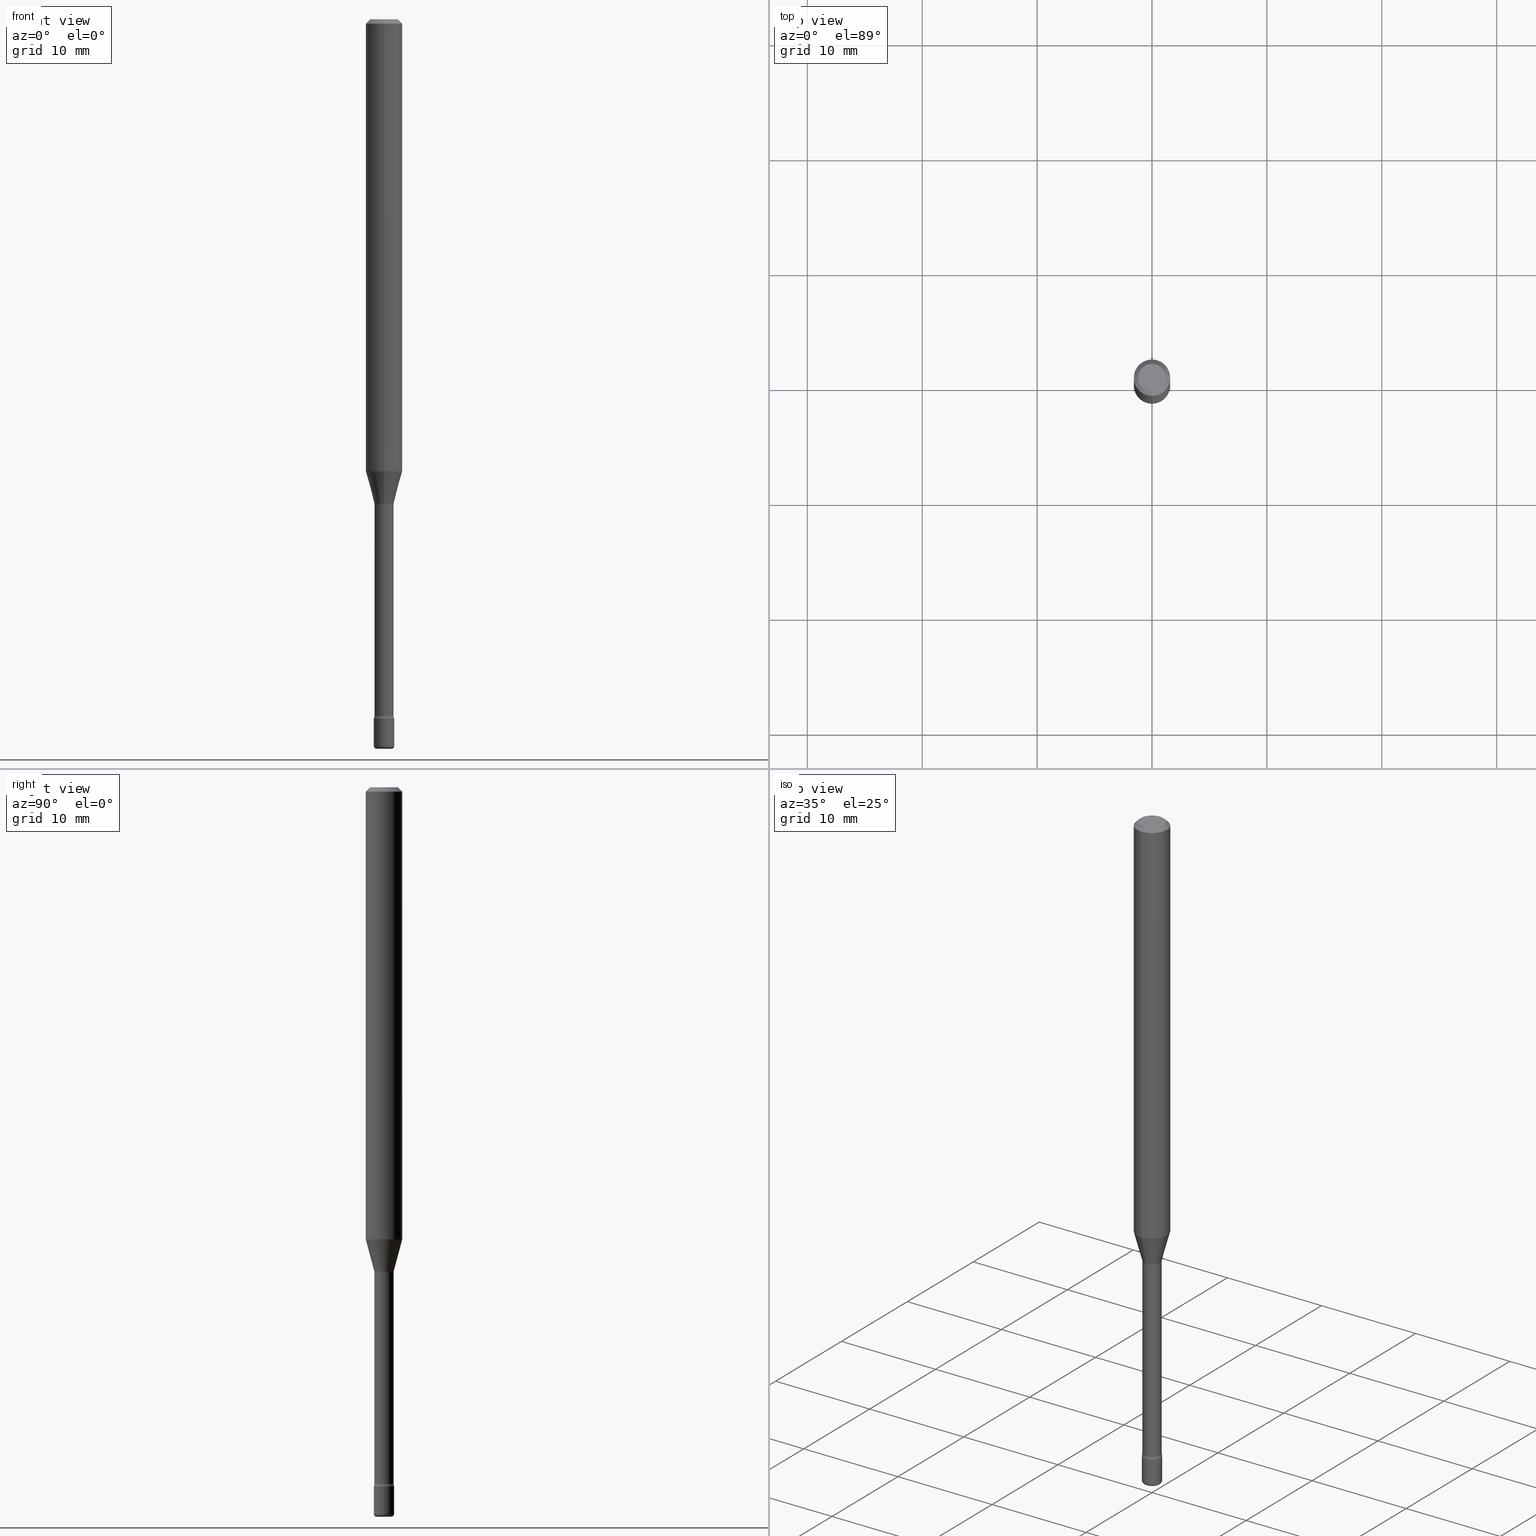
[diagram: canonical four-view strip — front | top / right | iso, engineering-drawing reading convention]
A machine part, canonical four-view strip (front | top / right | iso — engineering-drawing reading convention). The complete STEP part file that produces these views, byte-faithful:
ISO-10303-21;
HEADER;
FILE_DESCRIPTION (( 'STEP AP203' ),
    '1' );
FILE_NAME ('08835.STEP',
    '2024-03-06T20:04:43',
    ( '' ),
    ( '' ),
    'SwSTEP 2.0',
    'SolidWorks 2023',
    '' );
FILE_SCHEMA (( 'CONFIG_CONTROL_DESIGN' ));
ENDSEC;

DATA;
#1 = APPROVAL_DATE_TIME ( #51, #336 ) ;
#2 = CARTESIAN_POINT ( 'NONE',  ( -0.02500000000000000139, -8.516152849779407300E-15, -2.489999999999999769 ) ) ;
#3 = AXIS2_PLACEMENT_3D ( 'NONE', #350, #173, #533 ) ;
#4 = VERTEX_POINT ( 'NONE', #192 ) ;
#5 = PRODUCT_DEFINITION ( 'UNKNOWN', '', #532, #71 ) ;
#6 = CARTESIAN_POINT ( 'NONE',  ( 6.621140448549307300E-46, -9.460625362117724032E-32, -2.708570679933806043E-17 ) ) ;
#7 = VERTEX_POINT ( 'NONE', #151 ) ;
#8 = EDGE_CURVE ( 'NONE', #357, #167, #465, .T. ) ;
#9 = CARTESIAN_POINT ( 'NONE',  ( 0.03500000000000000333, -8.606501500248353382E-15, -2.395000000000000018 ) ) ;
#10 = EDGE_LOOP ( 'NONE', ( #16, #228, #308, #348 ) ) ;
#11 = CC_DESIGN_SECURITY_CLASSIFICATION ( #49, ( #532 ) ) ;
#12 = DIRECTION ( 'NONE',  ( -2.445417640947345847E-29, 3.491554610375806299E-15, 1.000000000000000000 ) ) ;
#13 = VECTOR ( 'NONE', #287, 39.37007874015748143 ) ;
#14 = EDGE_LOOP ( 'NONE', ( #101, #458, #124, #242 ) ) ;
#15 = DIRECTION ( 'NONE',  ( -6.982962677686265922E-15, -1.000000000000000000, 3.491554610375805905E-15 ) ) ;
#16 = ORIENTED_EDGE ( 'NONE', *, *, #202, .F. ) ;
#17 = DIRECTION ( 'NONE',  ( -2.445417640947345847E-29, 3.491554610375806299E-15, 1.000000000000000000 ) ) ;
#18 = ADVANCED_FACE ( 'NONE', ( #450 ), #327, .T. ) ;
#19 = CC_DESIGN_DATE_AND_TIME_ASSIGNMENT ( #159, #513, ( #49 ) ) ;
#20 = CARTESIAN_POINT ( 'NONE',  ( 4.054728654193116917E-29, -5.789320519044909412E-15, -1.658092501787273410 ) ) ;
#21 = ORIENTED_EDGE ( 'NONE', *, *, #425, .T. ) ;
#22 = AXIS2_PLACEMENT_3D ( 'NONE', #110, #544, #282 ) ;
#23 = CIRCLE ( 'NONE', #401, 0.01500000000000001853 ) ;
#24 = AXIS2_PLACEMENT_3D ( 'NONE', #451, #56, #501 ) ;
#25 = CC_DESIGN_PERSON_AND_ORGANIZATION_ASSIGNMENT ( #430, #384, ( #532 ) ) ;
#26 = CARTESIAN_POINT ( 'NONE',  ( 4.054728654193116917E-29, -5.789320519044909412E-15, -1.658092501787273410 ) ) ;
#27 = CARTESIAN_POINT ( 'NONE',  ( 6.113672015462842613E-29, -8.728703347107864943E-15, -2.500000000000000000 ) ) ;
#28 = CARTESIAN_POINT ( 'NONE',  ( -2.333085523452841648E-16, -0.03341111260566976410, -1.658092501787273410 ) ) ;
#29 = DIRECTION ( 'NONE',  ( -6.982962677686265133E-15, -1.000000000000000000, 3.491554610375806299E-15 ) ) ;
#30 = DIRECTION ( 'NONE',  ( 7.105427357601001859E-15, 1.000000000000000000, 0.000000000000000000 ) ) ;
#31 = AXIS2_PLACEMENT_3D ( 'NONE', #6, #305, #387 ) ;
#32 = CALENDAR_DATE ( 2024, 6, 3 ) ;
#33 = FACE_OUTER_BOUND ( 'NONE', #537, .T. ) ;
#34 = PERSON_AND_ORGANIZATION ( #374, #196 ) ;
#35 = DIRECTION ( 'NONE',  ( -6.982962677686266711E-15, -1.000000000000000000, 0.000000000000000000 ) ) ;
#36 = PRODUCT_DEFINITION_SHAPE ( 'NONE', 'NONE',  #5 ) ;
#37 = DIRECTION ( 'NONE',  ( -2.438088387897960049E-29, 3.491481338843145188E-15, 1.000000000000000000 ) ) ;
#38 = AXIS2_PLACEMENT_3D ( 'NONE', #407, #150, #15 ) ;
#39 = CIRCLE ( 'NONE', #93, 0.03290000000000001951 ) ;
#40 = DIRECTION ( 'NONE',  ( 0.000000000000000000, 0.000000000000000000, 1.000000000000000000 ) ) ;
#41 = ADVANCED_FACE ( 'NONE', ( #359 ), #409, .F. ) ;
#42 = DIRECTION ( 'NONE',  ( -2.445417640947345847E-29, 3.491554610375806299E-15, 1.000000000000000000 ) ) ;
#43 = DIRECTION ( 'NONE',  ( -6.982962677686265133E-15, -1.000000000000000000, 0.000000000000000000 ) ) ;
#44 = DIRECTION ( 'NONE',  ( -6.982962677686265922E-15, -1.000000000000000000, 3.483106191921935554E-15 ) ) ;
#45 = ORIENTED_EDGE ( 'NONE', *, *, #519, .T. ) ;
#46 = CC_DESIGN_PERSON_AND_ORGANIZATION_ASSIGNMENT ( #417, #331, ( #470 ) ) ;
#47 = CIRCLE ( 'NONE', #172, 0.03500000000000000333 ) ;
#48 = DIRECTION ( 'NONE',  ( 6.982962677686265922E-15, 1.000000000000000000, -3.491554610375806299E-15 ) ) ;
#49 = SECURITY_CLASSIFICATION ( '', '', #208 ) ;
#50 = VERTEX_POINT ( 'NONE', #500 ) ;
#51 = DATE_AND_TIME ( #376, #68 ) ;
#52 = CARTESIAN_POINT ( 'NONE',  ( 2.374002335562130443E-16, 0.03341111260565819002, -1.658092501787273410 ) ) ;
#53 = ORIENTED_EDGE ( 'NONE', *, *, #463, .F. ) ;
#54 = DIRECTION ( 'NONE',  ( -2.445417640947345847E-29, 3.491554610375806299E-15, 1.000000000000000000 ) ) ;
#55 = ORIENTED_EDGE ( 'NONE', *, *, #57, .T. ) ;
#56 = DIRECTION ( 'NONE',  ( -2.445417640947345847E-29, 3.491554610375806299E-15, 1.000000000000000000 ) ) ;
#57 = EDGE_CURVE ( 'NONE', #50, #284, #149, .T. ) ;
#58 = VECTOR ( 'NONE', #375, 39.37007874015748143 ) ;
#59 = VERTEX_POINT ( 'NONE', #239 ) ;
#60 = DIRECTION ( 'NONE',  ( -2.445417640947345847E-29, 3.491554610375806299E-15, 1.000000000000000000 ) ) ;
#61 = VERTEX_POINT ( 'NONE', #413 ) ;
#62 = CARTESIAN_POINT ( 'NONE',  ( 0.000000000000000000, 0.000000000000000000, 0.000000000000000000 ) ) ;
#63 = ORIENTED_EDGE ( 'NONE', *, *, #190, .F. ) ;
#64 = CARTESIAN_POINT ( 'NONE',  ( -0.02500000000000000139, -8.498083119685618084E-15, -2.500000000000000000 ) ) ;
#65 = VECTOR ( 'NONE', #17, 39.37007874015748143 ) ;
#66 = ORIENTED_EDGE ( 'NONE', *, *, #393, .T. ) ;
#67 = CIRCLE ( 'NONE', #299, 0.06250000000000000000 ) ;
#68 = LOCAL_TIME ( 15, 4, 43.00000000000000000, #467 ) ;
#69 = DIRECTION ( 'NONE',  ( -2.445417640947345847E-29, 3.491554610375806299E-15, 1.000000000000000000 ) ) ;
#70 = ORIENTED_EDGE ( 'NONE', *, *, #247, .T. ) ;
#71 = DESIGN_CONTEXT ( 'detailed design', #304, 'design' ) ;
#72 = ORIENTED_EDGE ( 'NONE', *, *, #283, .T. ) ;
#73 = DIRECTION ( 'NONE',  ( -6.982962677686265922E-15, -1.000000000000000000, 3.483106191921935554E-15 ) ) ;
#74 = APPROVAL_DATE_TIME ( #342, #216 ) ;
#75 = CYLINDRICAL_SURFACE ( 'NONE', #438, 0.03500000000000000333 ) ;
#76 = AXIS2_PLACEMENT_3D ( 'NONE', #443, #94, #434 ) ;
#77 = CIRCLE ( 'NONE', #309, 0.01500000000000001853 ) ;
#78 = DIRECTION ( 'NONE',  ( 1.000000000000000000, -6.982962677686276966E-15, 0.000000000000000000 ) ) ;
#79 = ORIENTED_EDGE ( 'NONE', *, *, #406, .T. ) ;
#80 = APPROVAL_DATE_TIME ( #252, #223 ) ;
#81 = DIRECTION ( 'NONE',  ( -6.982962677686265922E-15, -1.000000000000000000, 3.491554610375806299E-15 ) ) ;
#82 = APPROVAL_ROLE ( '' ) ;
#83 = DIRECTION ( 'NONE',  ( -2.445417640947345847E-29, 3.491554610375806299E-15, 1.000000000000000000 ) ) ;
#84 = EDGE_CURVE ( 'NONE', #61, #528, #534, .T. ) ;
#85 = CIRCLE ( 'NONE', #318, 0.03500000000000000333 ) ;
#86 = DIRECTION ( 'NONE',  ( -6.982962677686266711E-15, -1.000000000000000000, 0.000000000000000000 ) ) ;
#87 = FACE_OUTER_BOUND ( 'NONE', #234, .T. ) ;
#88 = ORIENTED_EDGE ( 'NONE', *, *, #116, .F. ) ;
#89 = DIRECTION ( 'NONE',  ( -6.982962677686265922E-15, -1.000000000000000000, 4.370956789862821150E-15 ) ) ;
#90 = EDGE_CURVE ( 'NONE', #50, #59, #526, .T. ) ;
#91 = ORIENTED_EDGE ( 'NONE', *, *, #418, .F. ) ;
#92 = AXIS2_PLACEMENT_3D ( 'NONE', #542, #100, #152 ) ;
#93 = AXIS2_PLACEMENT_3D ( 'NONE', #502, #368, #555 ) ;
#94 = DIRECTION ( 'NONE',  ( -2.445417640947345847E-29, 3.491554610375806299E-15, 1.000000000000000000 ) ) ;
#95 = VECTOR ( 'NONE', #277, 39.37007874015748143 ) ;
#96 = ORIENTED_EDGE ( 'NONE', *, *, #499, .F. ) ;
#97 = EDGE_CURVE ( 'NONE', #357, #268, #39, .T. ) ;
#98 = CARTESIAN_POINT ( 'NONE',  ( 2.337685600651315248E-16, 0.03289999999999419777, -1.661974787463811332 ) ) ;
#99 = EDGE_LOOP ( 'NONE', ( #88, #551 ) ) ;
#100 = DIRECTION ( 'NONE',  ( 2.438088387897960049E-29, -3.491481338843145188E-15, -1.000000000000000000 ) ) ;
#101 = ORIENTED_EDGE ( 'NONE', *, *, #488, .T. ) ;
#102 = CARTESIAN_POINT ( 'NONE',  ( 4.054728654193116917E-29, -5.789320519044909412E-15, -1.658092501787273410 ) ) ;
#103 = AXIS2_PLACEMENT_3D ( 'NONE', #256, #300, #138 ) ;
#104 = ORIENTED_EDGE ( 'NONE', *, *, #385, .F. ) ;
#105 = DIRECTION ( 'NONE',  ( -6.982962677686266711E-15, -1.000000000000000000, 0.000000000000000000 ) ) ;
#106 = DIRECTION ( 'NONE',  ( -2.445468806185136877E-29, 3.491481338843145188E-15, 1.000000000000000000 ) ) ;
#107 = CYLINDRICAL_SURFACE ( 'NONE', #38, 0.06250000000000000000 ) ;
#108 = FACE_OUTER_BOUND ( 'NONE', #99, .T. ) ;
#109 = DIRECTION ( 'NONE',  ( 1.000000000000000000, -6.982962677686265922E-15, 4.876176775795936353E-29 ) ) ;
#110 = CARTESIAN_POINT ( 'NONE',  ( 6.089217327400989947E-29, -8.693788533719431716E-15, -2.489999999999999769 ) ) ;
#111 = AXIS2_PLACEMENT_3D ( 'NONE', #249, #54, #44 ) ;
#112 = ORIENTED_EDGE ( 'NONE', *, *, #570, .T. ) ;
#113 = ORIENTED_EDGE ( 'NONE', *, *, #554, .F. ) ;
#114 = CC_DESIGN_PERSON_AND_ORGANIZATION_ASSIGNMENT ( #522, #295, ( #5 ) ) ;
#115 = CARTESIAN_POINT ( 'NONE',  ( -4.287811248607203282E-16, -0.06250000000000005551, -0.01499999999999981036 ) ) ;
#116 = EDGE_CURVE ( 'NONE', #4, #167, #85, .T. ) ;
#117 =( NAMED_UNIT ( * ) SI_UNIT ( $, .STERADIAN. ) SOLID_ANGLE_UNIT ( ) );
#118 = ADVANCED_FACE ( 'NONE', ( #108 ), #290, .F. ) ;
#119 = CARTESIAN_POINT ( 'NONE',  ( 3.407447217031568368E-16, 0.03341111260565819002, -1.658092501787273410 ) ) ;
#120 = CIRCLE ( 'NONE', #111, 0.06250000000000000000 ) ;
#121 = ORIENTED_EDGE ( 'NONE', *, *, #127, .T. ) ;
#122 = DIRECTION ( 'NONE',  ( -2.445468806185136597E-29, 3.491481338843145583E-15, 1.000000000000000000 ) ) ;
#123 = EDGE_CURVE ( 'NONE', #268, #4, #478, .T. ) ;
#124 = ORIENTED_EDGE ( 'NONE', *, *, #445, .F. ) ;
#125 = MECHANICAL_CONTEXT ( 'NONE', #275, 'mechanical' ) ;
#126 = DIRECTION ( 'NONE',  ( -6.982962677686265133E-15, -1.000000000000000000, 3.491554610375807088E-15 ) ) ;
#127 = EDGE_CURVE ( 'NONE', #268, #357, #353, .T. ) ;
#128 = CARTESIAN_POINT ( 'NONE',  ( 4.064222464073720144E-29, -5.802875731497621778E-15, -1.661974787463811332 ) ) ;
#129 = CIRCLE ( 'NONE', #31, 0.04750000000000000749 ) ;
#130 = DIRECTION ( 'NONE',  ( -1.000000000000000000, 7.105427357600962416E-15, 0.000000000000000000 ) ) ;
#131 = ADVANCED_FACE ( 'NONE', ( #33 ), #75, .T. ) ;
#132 = DIRECTION ( 'NONE',  ( 1.000000000000000000, -6.982962677686276966E-15, 0.000000000000000000 ) ) ;
#133 = ORIENTED_EDGE ( 'NONE', *, *, #57, .F. ) ;
#134 = CARTESIAN_POINT ( 'NONE',  ( -2.297394720958374770E-16, -0.03290000000000579961, -1.661974787463811332 ) ) ;
#135 = EDGE_LOOP ( 'NONE', ( #503, #493, #461, #367 ) ) ;
#136 = CONICAL_SURFACE ( 'NONE', #183, 0.03341111260566397706, 0.2617993877991495744 ) ;
#137 = CIRCLE ( 'NONE', #432, 0.03289999999999999869 ) ;
#138 = DIRECTION ( 'NONE',  ( -6.982962677686265133E-15, -1.000000000000000000, 3.491554610375805905E-15 ) ) ;
#139 = CIRCLE ( 'NONE', #164, 0.03341111260566397706 ) ;
#140 = ORIENTED_EDGE ( 'NONE', *, *, #141, .T. ) ;
#141 = EDGE_CURVE ( 'NONE', #232, #314, #23, .T. ) ;
#142 = DIRECTION ( 'NONE',  ( 7.105427357601001859E-15, 1.000000000000000000, -3.491481338843145583E-15 ) ) ;
#143 = EDGE_LOOP ( 'NONE', ( #230, #352, #63, #408 ) ) ;
#144 = EDGE_CURVE ( 'NONE', #314, #303, #255, .T. ) ;
#145 = DIRECTION ( 'NONE',  ( 1.000000000000000000, -7.105427357601001070E-15, 4.926316405859561380E-29 ) ) ;
#146 = CYLINDRICAL_SURFACE ( 'NONE', #543, 0.03290000000000001257 ) ;
#147 = AXIS2_PLACEMENT_3D ( 'NONE', #389, #354, #171 ) ;
#148 = CIRCLE ( 'NONE', #24, 0.03500000000000000333 ) ;
#149 = LINE ( 'NONE', #203, #212 ) ;
#150 = DIRECTION ( 'NONE',  ( -2.445417640947345847E-29, 3.491554610375806299E-15, 1.000000000000000000 ) ) ;
#151 = CARTESIAN_POINT ( 'NONE',  ( -4.364351673553540013E-16, -0.06250000000000544009, -1.549531296095961297 ) ) ;
#152 = DIRECTION ( 'NONE',  ( -1.000000000000000000, 6.982962677686265922E-15, -4.876176775795935793E-29 ) ) ;
#153 = DIRECTION ( 'NONE',  ( -2.445468806185136597E-29, 3.491481338843145583E-15, 1.000000000000000000 ) ) ;
#154 = APPLICATION_PROTOCOL_DEFINITION ( 'international standard', 'config_control_design', 1994, #275 ) ;
#155 = CARTESIAN_POINT ( 'NONE',  ( 5.856775250068893887E-29, -8.362273291850056610E-15, -2.395000000000000018 ) ) ;
#156 = LENGTH_MEASURE_WITH_UNIT ( LENGTH_MEASURE( 0.02539999999999999897 ), #460 );
#157 = CARTESIAN_POINT ( 'NONE',  ( 0.000000000000000000, 0.000000000000000000, 0.000000000000000000 ) ) ;
#158 = EDGE_CURVE ( 'NONE', #531, #7, #214, .T. ) ;
#159 = DATE_AND_TIME ( #32, #288 ) ;
#160 = CARTESIAN_POINT ( 'NONE',  ( 0.02500000000000000139, -8.868362600661588384E-15, -2.489999999999999769 ) ) ;
#161 = CC_DESIGN_PERSON_AND_ORGANIZATION_ASSIGNMENT ( #560, #328, ( #532 ) ) ;
#162 =( NAMED_UNIT ( * ) PLANE_ANGLE_UNIT ( ) SI_UNIT ( $, .RADIAN. ) );
#163 = CARTESIAN_POINT ( 'NONE',  ( 5.856897790813402508E-29, -8.362097806529333416E-15, -2.395000000000000018 ) ) ;
#164 = AXIS2_PLACEMENT_3D ( 'NONE', #102, #274, #313 ) ;
#165 = CIRCLE ( 'NONE', #497, 0.01000000000000008521 ) ;
#166 = VECTOR ( 'NONE', #236, 39.37007874015748143 ) ;
#167 = VERTEX_POINT ( 'NONE', #211 ) ;
#168 = CYLINDRICAL_SURFACE ( 'NONE', #383, 0.06250000000000000000 ) ;
#169 = CARTESIAN_POINT ( 'NONE',  ( 4.440892098501002843E-16, 0.06249999999999455991, -1.549531296095961963 ) ) ;
#170 = DIMENSIONAL_EXPONENTS ( 1.000000000000000000, 0.000000000000000000, 0.000000000000000000, 0.000000000000000000, 0.000000000000000000, 0.000000000000000000, 0.000000000000000000 ) ;
#171 = DIRECTION ( 'NONE',  ( 1.000000000000000000, -6.982962677686276966E-15, 0.000000000000000000 ) ) ;
#172 = AXIS2_PLACEMENT_3D ( 'NONE', #441, #257, #132 ) ;
#173 = DIRECTION ( 'NONE',  ( 2.445417640947345847E-29, -3.491554610375806299E-15, -1.000000000000000000 ) ) ;
#174 = MANIFOLD_SOLID_BREP ( 'Body-Move/Copy2[1]', #298 ) ;
#175 = ORIENTED_EDGE ( 'NONE', *, *, #144, .T. ) ;
#176 = EDGE_CURVE ( 'NONE', #7, #541, #253, .T. ) ;
#177 = MANIFOLD_SOLID_BREP ( 'Body-Move/Copy2[2]', #360 ) ;
#178 = CARTESIAN_POINT ( 'NONE',  ( -0.03500000000000000333, -8.279253212608347280E-15, -2.395000000000000018 ) ) ;
#179 = ORIENTED_EDGE ( 'NONE', *, *, #406, .F. ) ;
#180 = DIRECTION ( 'NONE',  ( 2.445417640947345566E-29, -3.491554610375806299E-15, -1.000000000000000000 ) ) ;
#181 = ADVANCED_FACE ( 'NONE', ( #464 ), #168, .T. ) ;
#182 = ORIENTED_EDGE ( 'NONE', *, *, #385, .T. ) ;
#183 = AXIS2_PLACEMENT_3D ( 'NONE', #20, #365, #105 ) ;
#184 = AXIS2_PLACEMENT_3D ( 'NONE', #325, #549, #505 ) ;
#185 = CARTESIAN_POINT ( 'NONE',  ( -3.773273898774340269E-16, -0.04750000000000000749, 1.387631371935127597E-16 ) ) ;
#186 = ADVANCED_FACE ( 'NONE', ( #382 ), #244, .T. ) ;
#187 = ORIENTED_EDGE ( 'NONE', *, *, #428, .F. ) ;
#188 = CARTESIAN_POINT ( 'NONE',  ( 4.440892098501006787E-16, 0.06249999999999995143, -0.01500000000000024578 ) ) ;
#189 = CARTESIAN_POINT ( 'NONE',  ( 3.403499704291464501E-16, 0.04789999999999168534, -2.387345589506696619 ) ) ;
#190 = EDGE_CURVE ( 'NONE', #541, #539, #67, .T. ) ;
#191 = DIRECTION ( 'NONE',  ( -6.982962677686265133E-15, -1.000000000000000000, 3.491554610375807088E-15 ) ) ;
#192 = CARTESIAN_POINT ( 'NONE',  ( -2.444036937189608014E-16, -0.03500000000000835776, -2.395000000000000018 ) ) ;
#193 = AXIS2_PLACEMENT_3D ( 'NONE', #26, #60, #454 ) ;
#194 = LINE ( 'NONE', #550, #379 ) ;
#195 = TOROIDAL_SURFACE ( 'NONE', #567, 0.02500000000000000139, 0.01000000000000008521 ) ;
#196 = ORGANIZATION ( 'UNSPECIFIED', 'UNSPECIFIED', '' ) ;
#197 = UNCERTAINTY_MEASURE_WITH_UNIT (LENGTH_MEASURE( 1.000000000000000082E-05 ), #380, 'distance_accuracy_value', 'NONE');
#198 = DIRECTION ( 'NONE',  ( -2.445417640947345847E-29, 3.491554610375806299E-15, 1.000000000000000000 ) ) ;
#199 = ORIENTED_EDGE ( 'NONE', *, *, #123, .T. ) ;
#200 = ORIENTED_EDGE ( 'NONE', *, *, #123, .F. ) ;
#201 = FACE_OUTER_BOUND ( 'NONE', #285, .T. ) ;
#202 = EDGE_CURVE ( 'NONE', #436, #541, #377, .T. ) ;
#203 = CARTESIAN_POINT ( 'NONE',  ( 0.03500000000000000333, -2.444036937190193250E-16, 1.706661871528577808E-30 ) ) ;
#204 = CARTESIAN_POINT ( 'NONE',  ( 0.000000000000000000, 0.000000000000000000, 0.000000000000000000 ) ) ;
#205 = DIRECTION ( 'NONE',  ( -2.445417640947345847E-29, 3.491554610375806299E-15, 1.000000000000000000 ) ) ;
#206 = AXIS2_PLACEMENT_3D ( 'NONE', #311, #180, #48 ) ;
#207 = LINE ( 'NONE', #344, #58 ) ;
#208 = SECURITY_CLASSIFICATION_LEVEL ( 'unclassified' ) ;
#209 = DIRECTION ( 'NONE',  ( -2.445417640947345847E-29, 3.491554610375806299E-15, 1.000000000000000000 ) ) ;
#210 = ADVANCED_FACE ( 'NONE', ( #564 ), #427, .T. ) ;
#211 = CARTESIAN_POINT ( 'NONE',  ( 2.486899575160935630E-16, 0.03499999999999163502, -2.395000000000000018 ) ) ;
#212 = VECTOR ( 'NONE', #106, 39.37007874015748143 ) ;
#213 = APPROVAL_STATUS ( 'not_yet_approved' ) ;
#214 = LINE ( 'NONE', #512, #261 ) ;
#215 = FACE_OUTER_BOUND ( 'NONE', #455, .T. ) ;
#216 = APPROVAL ( #472, 'UNSPECIFIED' ) ;
#217 = CARTESIAN_POINT ( 'NONE',  ( 3.840629472727447874E-16, 0.04750000000000000749, -1.929345507921888683E-16 ) ) ;
#218 = VERTEX_POINT ( 'NONE', #169 ) ;
#219 = AXIS2_PLACEMENT_3D ( 'NONE', #294, #424, #35 ) ;
#220 = TOROIDAL_SURFACE ( 'NONE', #307, 0.04790000000000001895, 0.01500000000000000291 ) ;
#221 = CARTESIAN_POINT ( 'NONE',  ( -2.297394720958198756E-16, -0.03290000000000835312, -2.387345589506695731 ) ) ;
#222 = ORIENTED_EDGE ( 'NONE', *, *, #226, .T. ) ;
#223 = APPROVAL ( #213, 'UNSPECIFIED' ) ;
#224 = CARTESIAN_POINT ( 'NONE',  ( 3.668126461421025373E-31, -5.237331915563719680E-17, -0.01500000000000002720 ) ) ;
#225 = EDGE_LOOP ( 'NONE', ( #72, #452 ) ) ;
#226 = EDGE_CURVE ( 'NONE', #59, #391, #207, .T. ) ;
#227 = CARTESIAN_POINT ( 'NONE',  ( 5.838179168722291637E-29, -8.335372575132118350E-15, -2.387345589506696175 ) ) ;
#228 = ORIENTED_EDGE ( 'NONE', *, *, #283, .F. ) ;
#229 = DIRECTION ( 'NONE',  ( -2.445468806185136597E-29, 3.491481338843145583E-15, 1.000000000000000000 ) ) ;
#230 = ORIENTED_EDGE ( 'NONE', *, *, #445, .T. ) ;
#231 = DIRECTION ( 'NONE',  ( -6.982962677686265133E-15, -1.000000000000000000, 3.491554610375806299E-15 ) ) ;
#232 = VERTEX_POINT ( 'NONE', #119 ) ;
#233 = FACE_OUTER_BOUND ( 'NONE', #397, .T. ) ;
#234 = EDGE_LOOP ( 'NONE', ( #400, #21, #457, #372 ) ) ;
#235 = LOCAL_TIME ( 15, 4, 43.00000000000000000, #373 ) ;
#236 = DIRECTION ( 'NONE',  ( 4.937700262164546464E-15, 0.7071067811865449082, -0.7071067811865501263 ) ) ;
#237 = CIRCLE ( 'NONE', #103, 0.04750000000000000749 ) ;
#238 = LOCAL_TIME ( 15, 4, 43.00000000000000000, #286 ) ;
#239 = CARTESIAN_POINT ( 'NONE',  ( -0.03500000000000004496, -8.445098576203397219E-15, -2.489999999999999769 ) ) ;
#240 = EDGE_CURVE ( 'NONE', #531, #303, #77, .T. ) ;
#241 = EDGE_LOOP ( 'NONE', ( #113, #182, #395, #444 ) ) ;
#242 = ORIENTED_EDGE ( 'NONE', *, *, #158, .F. ) ;
#243 = EDGE_CURVE ( 'NONE', #61, #50, #281, .T. ) ;
#244 = CYLINDRICAL_SURFACE ( 'NONE', #557, 0.03290000000000001257 ) ;
#245 = COORDINATED_UNIVERSAL_TIME_OFFSET ( 5, 0, .BEHIND. ) ;
#246 = DIRECTION ( 'NONE',  ( 1.000000000000000000, -6.982962677686265922E-15, 4.876176775795935793E-29 ) ) ;
#247 = EDGE_CURVE ( 'NONE', #391, #284, #370, .T. ) ;
#248 = CONICAL_SURFACE ( 'NONE', #3, 0.06250000000000000000, 0.7853981633974480570 ) ;
#249 = CARTESIAN_POINT ( 'NONE',  ( 3.668126461421025373E-31, -5.237331915563719680E-17, -0.01500000000000002720 ) ) ;
#250 = APPROVAL_STATUS ( 'not_yet_approved' ) ;
#251 = DIRECTION ( 'NONE',  ( -6.982962677686265922E-15, -1.000000000000000000, 3.491554610375805905E-15 ) ) ;
#252 = DATE_AND_TIME ( #563, #310 ) ;
#253 = LINE ( 'NONE', #523, #486 ) ;
#254 = CC_DESIGN_APPROVAL ( #336, ( #49 ) ) ;
#255 = CIRCLE ( 'NONE', #507, 0.03289999999999999869 ) ;
#256 = CARTESIAN_POINT ( 'NONE',  ( 6.621140448549307300E-46, -9.460625362117724032E-32, -2.708570679933806043E-17 ) ) ;
#257 = DIRECTION ( 'NONE',  ( -2.445468806185136597E-29, 3.491481338843145583E-15, 1.000000000000000000 ) ) ;
#258 = ORIENTED_EDGE ( 'NONE', *, *, #116, .T. ) ;
#259 = FACE_OUTER_BOUND ( 'NONE', #10, .T. ) ;
#260 = ORIENTED_EDGE ( 'NONE', *, *, #127, .F. ) ;
#261 = VECTOR ( 'NONE', #296, 39.37007874015748854 ) ;
#262 = CC_DESIGN_APPROVAL ( #223, ( #532 ) ) ;
#263 = DIRECTION ( 'NONE',  ( -2.445417640947345847E-29, 3.491554610375806299E-15, 1.000000000000000000 ) ) ;
#264 = ORIENTED_EDGE ( 'NONE', *, *, #141, .F. ) ;
#265 = EDGE_CURVE ( 'NONE', #539, #541, #120, .T. ) ;
#266 = ADVANCED_BREP_SHAPE_REPRESENTATION ( '08835', ( #174, #177, #340 ), #399 ) ;
#267 = CARTESIAN_POINT ( 'NONE',  ( 6.089217327400989947E-29, -8.693788533719431716E-15, -2.489999999999999769 ) ) ;
#268 = VERTEX_POINT ( 'NONE', #221 ) ;
#269 = FACE_OUTER_BOUND ( 'NONE', #278, .T. ) ;
#270 = ORIENTED_EDGE ( 'NONE', *, *, #84, .F. ) ;
#271 = AXIS2_PLACEMENT_3D ( 'NONE', #163, #37, #246 ) ;
#272 = LINE ( 'NONE', #492, #166 ) ;
#273 = EDGE_LOOP ( 'NONE', ( #187, #45, #442, #104 ) ) ;
#274 = DIRECTION ( 'NONE',  ( -2.445417640947345847E-29, 3.491554610375806299E-15, 1.000000000000000000 ) ) ;
#275 = APPLICATION_CONTEXT ( 'configuration controlled 3d designs of mechanical parts and assemblies' ) ;
#276 = DIRECTION ( 'NONE',  ( -6.982962677686265922E-15, -1.000000000000000000, 0.000000000000000000 ) ) ;
#277 = DIRECTION ( 'NONE',  ( -2.445417640947345847E-29, 3.491554610375806299E-15, 1.000000000000000000 ) ) ;
#278 = EDGE_LOOP ( 'NONE', ( #121, #349, #91, #378 ) ) ;
#279 = AXIS2_PLACEMENT_3D ( 'NONE', #316, #229, #363 ) ;
#280 = FACE_OUTER_BOUND ( 'NONE', #143, .T. ) ;
#281 = CIRCLE ( 'NONE', #410, 0.01000000000000008521 ) ;
#282 = DIRECTION ( 'NONE',  ( 1.000000000000000000, -6.982962677686259611E-15, 4.883557194083110659E-29 ) ) ;
#283 = EDGE_CURVE ( 'NONE', #403, #436, #237, .T. ) ;
#284 = VERTEX_POINT ( 'NONE', #9 ) ;
#285 = EDGE_LOOP ( 'NONE', ( #330, #260, #199, #258 ) ) ;
#286 = COORDINATED_UNIVERSAL_TIME_OFFSET ( 5, 0, .BEHIND. ) ;
#287 = DIRECTION ( 'NONE',  ( -4.851104656540962697E-15, -0.7071067811865497932, -0.7071067811865452413 ) ) ;
#288 = LOCAL_TIME ( 15, 4, 43.00000000000000000, #420 ) ;
#289 = PERSON_AND_ORGANIZATION ( #374, #196 ) ;
#290 = PLANE ( 'NONE',  #291 ) ;
#291 = AXIS2_PLACEMENT_3D ( 'NONE', #419, #476, #81 ) ;
#292 = AXIS2_PLACEMENT_3D ( 'NONE', #62, #498, #109 ) ;
#293 = EDGE_LOOP ( 'NONE', ( #79, #70 ) ) ;
#294 = CARTESIAN_POINT ( 'NONE',  ( -3.344839122611139354E-16, -0.04790000000000835256, -2.387345589506695731 ) ) ;
#295 = PERSON_AND_ORGANIZATION_ROLE ( 'creator' ) ;
#296 = DIRECTION ( 'NONE',  ( -1.807323732225325406E-15, -0.2588190451025175198, 0.9659258262890690894 ) ) ;
#297 = DIRECTION ( 'NONE',  ( 1.000000000000000000, -6.982962677686273021E-15, 0.000000000000000000 ) ) ;
#298 = CLOSED_SHELL ( 'NONE', ( #131, #366, #210, #548, #18, #559 ) ) ;
#299 = AXIS2_PLACEMENT_3D ( 'NONE', #422, #209, #73 ) ;
#300 = DIRECTION ( 'NONE',  ( -2.445417640947345847E-29, 3.491554610375806299E-15, 1.000000000000000000 ) ) ;
#301 = EDGE_LOOP ( 'NONE', ( #565, #66, #55, #480 ) ) ;
#302 = CARTESIAN_POINT ( 'NONE',  ( 4.054728654193116917E-29, -5.789320519044909412E-15, -1.658092501787273410 ) ) ;
#303 = VERTEX_POINT ( 'NONE', #134 ) ;
#304 = APPLICATION_CONTEXT ( 'configuration controlled 3d designs of mechanical parts and assemblies' ) ;
#305 = DIRECTION ( 'NONE',  ( -2.445417640947345847E-29, 3.491554610375806299E-15, 1.000000000000000000 ) ) ;
#306 = EDGE_CURVE ( 'NONE', #436, #403, #129, .T. ) ;
#307 = AXIS2_PLACEMENT_3D ( 'NONE', #402, #321, #324 ) ;
#308 = ORIENTED_EDGE ( 'NONE', *, *, #535, .T. ) ;
#309 = AXIS2_PLACEMENT_3D ( 'NONE', #520, #561, #469 ) ;
#310 = LOCAL_TIME ( 15, 4, 43.00000000000000000, #245 ) ;
#311 = CARTESIAN_POINT ( 'NONE',  ( 3.316907271900976589E-16, 0.04750000000000000749, 5.964500205310315349E-17 ) ) ;
#312 = EDGE_LOOP ( 'NONE', ( #264, #487, #516, #335 ) ) ;
#313 = DIRECTION ( 'NONE',  ( -6.982962677686266711E-15, -1.000000000000000000, 0.000000000000000000 ) ) ;
#314 = VERTEX_POINT ( 'NONE', #98 ) ;
#315 = ADVANCED_FACE ( 'NONE', ( #479 ), #394, .F. ) ;
#316 = CARTESIAN_POINT ( 'NONE',  ( 6.113672015462842613E-29, -8.728703347107864943E-15, -2.500000000000000000 ) ) ;
#317 = ORIENTED_EDGE ( 'NONE', *, *, #144, .F. ) ;
#318 = AXIS2_PLACEMENT_3D ( 'NONE', #155, #510, #276 ) ;
#319 = DIRECTION ( 'NONE',  ( -2.445417640947345847E-29, 3.491554610375806299E-15, 1.000000000000000000 ) ) ;
#320 = DIRECTION ( 'NONE',  ( -2.445417640947345847E-29, 3.491554610375806299E-15, 1.000000000000000000 ) ) ;
#321 = DIRECTION ( 'NONE',  ( -2.445417640947345847E-29, 3.491554610375806299E-15, 1.000000000000000000 ) ) ;
#322 = DIRECTION ( 'NONE',  ( 7.105427357601001859E-15, 1.000000000000000000, 0.000000000000000000 ) ) ;
#323 = ORIENTED_EDGE ( 'NONE', *, *, #97, .F. ) ;
#324 = DIRECTION ( 'NONE',  ( -6.982962677686265133E-15, -1.000000000000000000, 3.491554610375806299E-15 ) ) ;
#325 = CARTESIAN_POINT ( 'NONE',  ( 6.089217327400989947E-29, -8.693788533719431716E-15, -2.489999999999999769 ) ) ;
#326 = CONICAL_SURFACE ( 'NONE', #468, 0.06250000000000000000, 0.7853981633974480570 ) ;
#327 = TOROIDAL_SURFACE ( 'NONE', #22, 0.02500000000000000139, 0.01000000000000008521 ) ;
#328 = PERSON_AND_ORGANIZATION_ROLE ( 'design_supplier' ) ;
#329 = VECTOR ( 'NONE', #525, 39.37007874015748854 ) ;
#330 = ORIENTED_EDGE ( 'NONE', *, *, #8, .F. ) ;
#331 = PERSON_AND_ORGANIZATION_ROLE ( 'design_owner' ) ;
#332 = DIRECTION ( 'NONE',  ( 1.000000000000000000, -7.105427357601001070E-15, 4.926316405859561380E-29 ) ) ;
#333 = DATE_TIME_ROLE ( 'creation_date' ) ;
#334 = DIRECTION ( 'NONE',  ( -6.982962677686266711E-15, -1.000000000000000000, 3.491481338843145583E-15 ) ) ;
#335 = ORIENTED_EDGE ( 'NONE', *, *, #418, .T. ) ;
#336 = APPROVAL ( #250, 'UNSPECIFIED' ) ;
#337 = PERSON_AND_ORGANIZATION ( #374, #196 ) ;
#338 = DIRECTION ( 'NONE',  ( -2.445417640947345847E-29, 3.491554610375806299E-15, 1.000000000000000000 ) ) ;
#339 = AXIS2_PLACEMENT_3D ( 'NONE', #27, #153, #364 ) ;
#340 = AXIS2_PLACEMENT_3D ( 'NONE', #204, #40, #568 ) ;
#341 = ORIENTED_EDGE ( 'NONE', *, *, #8, .T. ) ;
#342 = DATE_AND_TIME ( #462, #238 ) ;
#343 = DIRECTION ( 'NONE',  ( -6.982962677686265133E-15, -1.000000000000000000, 0.000000000000000000 ) ) ;
#344 = CARTESIAN_POINT ( 'NONE',  ( -0.03500000000000000333, 2.486899575160350887E-16, -1.721627281589217108E-30 ) ) ;
#345 = CARTESIAN_POINT ( 'NONE',  ( 4.064222464073720144E-29, -5.802875731497621778E-15, -1.661974787463811332 ) ) ;
#346 = CIRCLE ( 'NONE', #76, 0.06250000000000000000 ) ;
#347 = DIRECTION ( 'NONE',  ( 1.000000000000000000, -6.982962677686259611E-15, 4.883557194083110659E-29 ) ) ;
#348 = ORIENTED_EDGE ( 'NONE', *, *, #265, .T. ) ;
#349 = ORIENTED_EDGE ( 'NONE', *, *, #499, .T. ) ;
#350 = CARTESIAN_POINT ( 'NONE',  ( 3.668126461421025373E-31, -5.237331915563719680E-17, -0.01500000000000002720 ) ) ;
#351 = TOROIDAL_SURFACE ( 'NONE', #484, 0.04789999999999999813, 0.01500000000000002373 ) ;
#352 = ORIENTED_EDGE ( 'NONE', *, *, #554, .T. ) ;
#353 = CIRCLE ( 'NONE', #361, 0.03290000000000001951 ) ;
#354 = DIRECTION ( 'NONE',  ( -2.445468806185136597E-29, 3.491481338843145583E-15, 1.000000000000000000 ) ) ;
#355 = ORIENTED_EDGE ( 'NONE', *, *, #459, .T. ) ;
#356 = CARTESIAN_POINT ( 'NONE',  ( -4.364351673553912750E-16, -0.06250000000000005551, -0.01499999999999981036 ) ) ;
#357 = VERTEX_POINT ( 'NONE', #490 ) ;
#358 = FACE_OUTER_BOUND ( 'NONE', #405, .T. ) ;
#359 = FACE_OUTER_BOUND ( 'NONE', #312, .T. ) ;
#360 = CLOSED_SHELL ( 'NONE', ( #481, #556, #388, #435, #494, #562, #440, #181, #453, #315, #118, #474, #186, #41 ) ) ;
#361 = AXIS2_PLACEMENT_3D ( 'NONE', #473, #558, #343 ) ;
#362 = APPROVAL_PERSON_ORGANIZATION ( #289, #336, #426 ) ;
#363 = DIRECTION ( 'NONE',  ( 1.000000000000000000, -6.982962677686254878E-15, 0.000000000000000000 ) ) ;
#364 = DIRECTION ( 'NONE',  ( 1.000000000000000000, -6.982962677686254878E-15, 0.000000000000000000 ) ) ;
#365 = DIRECTION ( 'NONE',  ( -2.445417640947345847E-29, 3.491554610375806299E-15, 1.000000000000000000 ) ) ;
#366 = ADVANCED_FACE ( 'NONE', ( #87 ), #195, .T. ) ;
#367 = ORIENTED_EDGE ( 'NONE', *, *, #393, .F. ) ;
#368 = DIRECTION ( 'NONE',  ( -2.445417640947345847E-29, 3.491554610375806299E-15, 1.000000000000000000 ) ) ;
#369 = APPLICATION_PROTOCOL_DEFINITION ( 'international standard', 'config_control_design', 1994, #304 ) ;
#370 = CIRCLE ( 'NONE', #448, 0.03500000000000000333 ) ;
#371 = DIRECTION ( 'NONE',  ( -6.982962677686265133E-15, -1.000000000000000000, 0.000000000000000000 ) ) ;
#372 = ORIENTED_EDGE ( 'NONE', *, *, #243, .F. ) ;
#373 = COORDINATED_UNIVERSAL_TIME_OFFSET ( 5, 0, .BEHIND. ) ;
#374 = PERSON ( 'UNSPECIFIED', 'UNSPECIFIED', 'UNSPECIFIED', ('UNSPECIFIED'), ('UNSPECIFIED'), ('UNSPECIFIED') ) ;
#375 = DIRECTION ( 'NONE',  ( -2.445468806185136877E-29, 3.491481338843145188E-15, 1.000000000000000000 ) ) ;
#376 = CALENDAR_DATE ( 2024, 6, 3 ) ;
#377 = LINE ( 'NONE', #115, #13 ) ;
#378 = ORIENTED_EDGE ( 'NONE', *, *, #570, .F. ) ;
#379 = VECTOR ( 'NONE', #69, 39.37007874015748143 ) ;
#380 =( CONVERSION_BASED_UNIT ( 'INCH', #156 ) LENGTH_UNIT ( ) NAMED_UNIT ( #170 ) );
#381 = AXIS2_PLACEMENT_3D ( 'NONE', #189, #145, #322 ) ;
#382 = FACE_OUTER_BOUND ( 'NONE', #416, .T. ) ;
#383 = AXIS2_PLACEMENT_3D ( 'NONE', #386, #338, #251 ) ;
#384 = PERSON_AND_ORGANIZATION_ROLE ( 'creator' ) ;
#385 = EDGE_CURVE ( 'NONE', #218, #7, #346, .T. ) ;
#386 = CARTESIAN_POINT ( 'NONE',  ( -1.169113584055446105E-44, 1.669184350826100908E-30, 4.780733988912460139E-16 ) ) ;
#387 = DIRECTION ( 'NONE',  ( -6.982962677686265133E-15, -1.000000000000000000, 3.491554610375805905E-15 ) ) ;
#388 = ADVANCED_FACE ( 'NONE', ( #215 ), #421, .F. ) ;
#389 = CARTESIAN_POINT ( 'NONE',  ( 5.856897790813402508E-29, -8.362097806529333416E-15, -2.395000000000000018 ) ) ;
#390 = CIRCLE ( 'NONE', #147, 0.03500000000000000333 ) ;
#391 = VERTEX_POINT ( 'NONE', #178 ) ;
#392 = AXIS2_PLACEMENT_3D ( 'NONE', #227, #263, #398 ) ;
#393 = EDGE_CURVE ( 'NONE', #59, #50, #47, .T. ) ;
#394 = PLANE ( 'NONE',  #206 ) ;
#395 = ORIENTED_EDGE ( 'NONE', *, *, #176, .T. ) ;
#396 = DIRECTION ( 'NONE',  ( 6.982962677686265922E-15, 1.000000000000000000, -3.483106191921935554E-15 ) ) ;
#397 = EDGE_LOOP ( 'NONE', ( #270, #53 ) ) ;
#398 = DIRECTION ( 'NONE',  ( -6.982962677686265133E-15, -1.000000000000000000, 3.491554610375806299E-15 ) ) ;
#399 =( GEOMETRIC_REPRESENTATION_CONTEXT ( 3 ) GLOBAL_UNCERTAINTY_ASSIGNED_CONTEXT ( ( #197 ) ) GLOBAL_UNIT_ASSIGNED_CONTEXT ( ( #380, #162, #117 ) ) REPRESENTATION_CONTEXT ( 'NONE', 'WORKASPACE' ) );
#400 = ORIENTED_EDGE ( 'NONE', *, *, #84, .T. ) ;
#401 = AXIS2_PLACEMENT_3D ( 'NONE', #524, #332, #30 ) ;
#402 = CARTESIAN_POINT ( 'NONE',  ( 5.838179168722291637E-29, -8.335372575132118350E-15, -2.387345589506696175 ) ) ;
#403 = VERTEX_POINT ( 'NONE', #217 ) ;
#404 = CARTESIAN_POINT ( 'NONE',  ( 4.064307499408922751E-29, -5.802753956057700708E-15, -1.661974787463811332 ) ) ;
#405 = EDGE_LOOP ( 'NONE', ( #483, #140, #175, #471 ) ) ;
#406 = EDGE_CURVE ( 'NONE', #284, #391, #390, .T. ) ;
#407 = CARTESIAN_POINT ( 'NONE',  ( -1.169113584055446105E-44, 1.669184350826100908E-30, 4.780733988912460139E-16 ) ) ;
#408 = ORIENTED_EDGE ( 'NONE', *, *, #176, .F. ) ;
#409 = TOROIDAL_SURFACE ( 'NONE', #485, 0.04789999999999999813, 0.01500000000000002373 ) ;
#410 = AXIS2_PLACEMENT_3D ( 'NONE', #160, #334, #297 ) ;
#411 = CIRCLE ( 'NONE', #193, 0.03341111260566397706 ) ;
#412 = CARTESIAN_POINT ( 'NONE',  ( 4.440892098500625669E-16, 0.06250000000000000000, 2.598512357427581449E-16 ) ) ;
#413 = CARTESIAN_POINT ( 'NONE',  ( 0.02500000000000000139, -8.903277414050021610E-15, -2.500000000000000000 ) ) ;
#414 = CYLINDRICAL_SURFACE ( 'NONE', #292, 0.03500000000000000333 ) ;
#415 = CARTESIAN_POINT ( 'NONE',  ( 4.064307499408922751E-29, -5.802753956057700708E-15, -1.661974787463811332 ) ) ;
#416 = EDGE_LOOP ( 'NONE', ( #96, #491, #112, #317 ) ) ;
#417 = PERSON_AND_ORGANIZATION ( #374, #196 ) ;
#418 = EDGE_CURVE ( 'NONE', #303, #314, #137, .T. ) ;
#419 = CARTESIAN_POINT ( 'NONE',  ( 2.444036937190778979E-16, 0.03499999999999164196, -2.395000000000000018 ) ) ;
#420 = COORDINATED_UNIVERSAL_TIME_OFFSET ( 5, 0, .BEHIND. ) ;
#421 = TOROIDAL_SURFACE ( 'NONE', #392, 0.04790000000000001895, 0.01500000000000000291 ) ;
#422 = CARTESIAN_POINT ( 'NONE',  ( 3.668126461421025373E-31, -5.237331915563719680E-17, -0.01500000000000002720 ) ) ;
#423 = DATE_AND_TIME ( #475, #235 ) ;
#424 = DIRECTION ( 'NONE',  ( -1.000000000000000000, 6.982962677686265922E-15, -4.883557194083112340E-29 ) ) ;
#425 = EDGE_CURVE ( 'NONE', #528, #59, #165, .T. ) ;
#426 = APPROVAL_ROLE ( '' ) ;
#427 = PLANE ( 'NONE',  #271 ) ;
#428 = EDGE_CURVE ( 'NONE', #232, #218, #572, .T. ) ;
#429 = APPROVAL_PERSON_ORGANIZATION ( #511, #216, #517 ) ;
#430 = PERSON_AND_ORGANIZATION ( #374, #196 ) ;
#431 = DIRECTION ( 'NONE',  ( 1.000000000000000000, -6.982962677686265922E-15, 4.876176775795936353E-29 ) ) ;
#432 = AXIS2_PLACEMENT_3D ( 'NONE', #345, #12, #43 ) ;
#433 = DIRECTION ( 'NONE',  ( -2.445468806185136597E-29, 3.491481338843145583E-15, 1.000000000000000000 ) ) ;
#434 = DIRECTION ( 'NONE',  ( -6.982962677686265922E-15, -1.000000000000000000, 4.370956789862821150E-15 ) ) ;
#435 = ADVANCED_FACE ( 'NONE', ( #538 ), #248, .T. ) ;
#436 = VERTEX_POINT ( 'NONE', #185 ) ;
#437 = DIRECTION ( 'NONE',  ( 2.445417640947345847E-29, -3.491554610375806299E-15, -1.000000000000000000 ) ) ;
#438 = AXIS2_PLACEMENT_3D ( 'NONE', #157, #122, #431 ) ;
#439 = ORIENTED_EDGE ( 'NONE', *, *, #202, .T. ) ;
#440 = ADVANCED_FACE ( 'NONE', ( #477 ), #466, .T. ) ;
#441 = CARTESIAN_POINT ( 'NONE',  ( 6.089217327400989947E-29, -8.693788533719431716E-15, -2.489999999999999769 ) ) ;
#442 = ORIENTED_EDGE ( 'NONE', *, *, #158, .T. ) ;
#443 = CARTESIAN_POINT ( 'NONE',  ( 3.789251166673069314E-29, -5.410273140805453489E-15, -1.549531296095961519 ) ) ;
#444 = ORIENTED_EDGE ( 'NONE', *, *, #265, .F. ) ;
#445 = EDGE_CURVE ( 'NONE', #7, #218, #536, .T. ) ;
#446 = CARTESIAN_POINT ( 'NONE',  ( -1.169113584055446105E-44, 1.669184350826100908E-30, 4.780733988912460139E-16 ) ) ;
#447 = ORIENTED_EDGE ( 'NONE', *, *, #535, .F. ) ;
#448 = AXIS2_PLACEMENT_3D ( 'NONE', #515, #569, #78 ) ;
#449 = LINE ( 'NONE', #412, #65 ) ;
#450 = FACE_OUTER_BOUND ( 'NONE', #135, .T. ) ;
#451 = CARTESIAN_POINT ( 'NONE',  ( 5.856775250068893887E-29, -8.362273291850056610E-15, -2.395000000000000018 ) ) ;
#452 = ORIENTED_EDGE ( 'NONE', *, *, #306, .T. ) ;
#453 = ADVANCED_FACE ( 'NONE', ( #259 ), #326, .T. ) ;
#454 = DIRECTION ( 'NONE',  ( -6.982962677686266711E-15, -1.000000000000000000, 0.000000000000000000 ) ) ;
#455 = EDGE_LOOP ( 'NONE', ( #323, #341, #355, #200 ) ) ;
#456 = PRODUCT_RELATED_PRODUCT_CATEGORY ( 'detail', '', ( #470 ) ) ;
#457 = ORIENTED_EDGE ( 'NONE', *, *, #90, .F. ) ;
#458 = ORIENTED_EDGE ( 'NONE', *, *, #428, .T. ) ;
#459 = EDGE_CURVE ( 'NONE', #167, #4, #148, .T. ) ;
#460 =( LENGTH_UNIT ( ) NAMED_UNIT ( * ) SI_UNIT ( $, .METRE. ) );
#461 = ORIENTED_EDGE ( 'NONE', *, *, #243, .T. ) ;
#462 = CALENDAR_DATE ( 2024, 6, 3 ) ;
#463 = EDGE_CURVE ( 'NONE', #528, #61, #546, .T. ) ;
#464 = FACE_OUTER_BOUND ( 'NONE', #241, .T. ) ;
#465 = CIRCLE ( 'NONE', #381, 0.01500000000000000291 ) ;
#466 = CONICAL_SURFACE ( 'NONE', #545, 0.03341111260566397706, 0.2617993877991495744 ) ;
#467 = COORDINATED_UNIVERSAL_TIME_OFFSET ( 5, 0, .BEHIND. ) ;
#468 = AXIS2_PLACEMENT_3D ( 'NONE', #224, #437, #396 ) ;
#469 = DIRECTION ( 'NONE',  ( -6.982962677686267499E-15, -1.000000000000000000, 0.000000000000000000 ) ) ;
#470 = PRODUCT ( '08835', '08835', '', ( #125 ) ) ;
#471 = ORIENTED_EDGE ( 'NONE', *, *, #240, .F. ) ;
#472 = APPROVAL_STATUS ( 'not_yet_approved' ) ;
#473 = CARTESIAN_POINT ( 'NONE',  ( 5.838057019617513987E-29, -8.335547499602452744E-15, -2.387345589506695731 ) ) ;
#474 = ADVANCED_FACE ( 'NONE', ( #201 ), #220, .F. ) ;
#475 = CALENDAR_DATE ( 2024, 6, 3 ) ;
#476 = DIRECTION ( 'NONE',  ( -2.445417640947345566E-29, 3.491554610375806299E-15, 1.000000000000000000 ) ) ;
#477 = FACE_OUTER_BOUND ( 'NONE', #273, .T. ) ;
#478 = CIRCLE ( 'NONE', #219, 0.01500000000000000291 ) ;
#479 = FACE_OUTER_BOUND ( 'NONE', #225, .T. ) ;
#480 = ORIENTED_EDGE ( 'NONE', *, *, #247, .F. ) ;
#481 = ADVANCED_FACE ( 'NONE', ( #358 ), #351, .F. ) ;
#482 = DIRECTION ( 'NONE',  ( -2.445417640947345847E-29, 3.491554610375806299E-15, 1.000000000000000000 ) ) ;
#483 = ORIENTED_EDGE ( 'NONE', *, *, #519, .F. ) ;
#484 = AXIS2_PLACEMENT_3D ( 'NONE', #404, #198, #231 ) ;
#485 = AXIS2_PLACEMENT_3D ( 'NONE', #415, #320, #29 ) ;
#486 = VECTOR ( 'NONE', #42, 39.37007874015748143 ) ;
#487 = ORIENTED_EDGE ( 'NONE', *, *, #488, .F. ) ;
#488 = EDGE_CURVE ( 'NONE', #531, #232, #139, .T. ) ;
#489 = AXIS2_PLACEMENT_3D ( 'NONE', #527, #482, #89 ) ;
#490 = CARTESIAN_POINT ( 'NONE',  ( 2.412292587906125439E-16, 0.03289999999999167896, -2.387345589506695731 ) ) ;
#491 = ORIENTED_EDGE ( 'NONE', *, *, #97, .T. ) ;
#492 = CARTESIAN_POINT ( 'NONE',  ( 4.364351673553919652E-16, 0.06249999999999995143, -0.01500000000000024578 ) ) ;
#493 = ORIENTED_EDGE ( 'NONE', *, *, #463, .T. ) ;
#494 = ADVANCED_FACE ( 'NONE', ( #280 ), #107, .T. ) ;
#495 = LINE ( 'NONE', #553, #95 ) ;
#496 = ORIENTED_EDGE ( 'NONE', *, *, #90, .T. ) ;
#497 = AXIS2_PLACEMENT_3D ( 'NONE', #2, #142, #130 ) ;
#498 = DIRECTION ( 'NONE',  ( -2.445468806185136597E-29, 3.491481338843145583E-15, 1.000000000000000000 ) ) ;
#499 = EDGE_CURVE ( 'NONE', #357, #314, #495, .T. ) ;
#500 = CARTESIAN_POINT ( 'NONE',  ( 0.03500000000000004496, -8.938192227438451682E-15, -2.489999999999999769 ) ) ;
#501 = DIRECTION ( 'NONE',  ( -6.982962677686265922E-15, -1.000000000000000000, 0.000000000000000000 ) ) ;
#502 = CARTESIAN_POINT ( 'NONE',  ( 5.838057019617513987E-29, -8.335547499602452744E-15, -2.387345589506695731 ) ) ;
#503 = ORIENTED_EDGE ( 'NONE', *, *, #425, .F. ) ;
#504 = FACE_OUTER_BOUND ( 'NONE', #301, .T. ) ;
#505 = DIRECTION ( 'NONE',  ( 1.000000000000000000, -6.982962677686276966E-15, 0.000000000000000000 ) ) ;
#506 = APPROVAL_PERSON_ORGANIZATION ( #34, #223, #82 ) ;
#507 = AXIS2_PLACEMENT_3D ( 'NONE', #128, #83, #371 ) ;
#508 = ORIENTED_EDGE ( 'NONE', *, *, #190, .T. ) ;
#509 = PERSON_AND_ORGANIZATION_ROLE ( 'classification_officer' ) ;
#510 = DIRECTION ( 'NONE',  ( -2.445417640947345847E-29, 3.491554610375806299E-15, 1.000000000000000000 ) ) ;
#511 = PERSON_AND_ORGANIZATION ( #374, #196 ) ;
#512 = CARTESIAN_POINT ( 'NONE',  ( -2.333085523452841648E-16, -0.03341111260566976410, -1.658092501787273410 ) ) ;
#513 = DATE_TIME_ROLE ( 'classification_date' ) ;
#514 = CC_DESIGN_DATE_AND_TIME_ASSIGNMENT ( #423, #333, ( #5 ) ) ;
#515 = CARTESIAN_POINT ( 'NONE',  ( 5.856897790813402508E-29, -8.362097806529333416E-15, -2.395000000000000018 ) ) ;
#516 = ORIENTED_EDGE ( 'NONE', *, *, #240, .T. ) ;
#517 = APPROVAL_ROLE ( '' ) ;
#518 = CC_DESIGN_APPROVAL ( #216, ( #5 ) ) ;
#519 = EDGE_CURVE ( 'NONE', #232, #531, #411, .T. ) ;
#520 = CARTESIAN_POINT ( 'NONE',  ( -3.344839122611314876E-16, -0.04790000000000579905, -1.661974787463811110 ) ) ;
#521 = ORIENTED_EDGE ( 'NONE', *, *, #306, .F. ) ;
#522 = PERSON_AND_ORGANIZATION ( #374, #196 ) ;
#523 = CARTESIAN_POINT ( 'NONE',  ( -4.364351673553916201E-16, -0.06250000000000000000, 6.962955620397339816E-16 ) ) ;
#524 = CARTESIAN_POINT ( 'NONE',  ( 3.403499704291285528E-16, 0.04789999999999419028, -1.661974787463811554 ) ) ;
#525 = DIRECTION ( 'NONE',  ( 1.839019923739595582E-15, 0.2588190451025242922, 0.9659258262890673130 ) ) ;
#526 = CIRCLE ( 'NONE', #184, 0.03500000000000000333 ) ;
#527 = CARTESIAN_POINT ( 'NONE',  ( 3.789251166673069314E-29, -5.410273140805453489E-15, -1.549531296095961519 ) ) ;
#528 = VERTEX_POINT ( 'NONE', #64 ) ;
#529 = SHAPE_DEFINITION_REPRESENTATION ( #36, #266 ) ;
#530 = DIRECTION ( 'NONE',  ( -2.445417640947345847E-29, 3.491554610375806299E-15, 1.000000000000000000 ) ) ;
#531 = VERTEX_POINT ( 'NONE', #28 ) ;
#532 = PRODUCT_DEFINITION_FORMATION_WITH_SPECIFIED_SOURCE ( 'ANY', '', #470, .NOT_KNOWN. ) ;
#533 = DIRECTION ( 'NONE',  ( 6.982962677686265922E-15, 1.000000000000000000, -3.483106191921935554E-15 ) ) ;
#534 = CIRCLE ( 'NONE', #339, 0.02500000000000000139 ) ;
#535 = EDGE_CURVE ( 'NONE', #403, #539, #272, .T. ) ;
#536 = CIRCLE ( 'NONE', #489, 0.06250000000000000000 ) ;
#537 = EDGE_LOOP ( 'NONE', ( #496, #222, #179, #133 ) ) ;
#538 = FACE_OUTER_BOUND ( 'NONE', #552, .T. ) ;
#539 = VERTEX_POINT ( 'NONE', #188 ) ;
#540 = PLANE ( 'NONE',  #92 ) ;
#541 = VERTEX_POINT ( 'NONE', #356 ) ;
#542 = CARTESIAN_POINT ( 'NONE',  ( 1.745740669422178045E-16, 0.02499999999999127226, -2.500000000000000000 ) ) ;
#543 = AXIS2_PLACEMENT_3D ( 'NONE', #446, #319, #191 ) ;
#544 = DIRECTION ( 'NONE',  ( -2.445468806185136597E-29, 3.491481338843145583E-15, 1.000000000000000000 ) ) ;
#545 = AXIS2_PLACEMENT_3D ( 'NONE', #302, #530, #86 ) ;
#546 = CIRCLE ( 'NONE', #279, 0.02500000000000000139 ) ;
#547 = FACE_OUTER_BOUND ( 'NONE', #14, .T. ) ;
#548 = ADVANCED_FACE ( 'NONE', ( #233 ), #540, .T. ) ;
#549 = DIRECTION ( 'NONE',  ( -2.445468806185136597E-29, 3.491481338843145583E-15, 1.000000000000000000 ) ) ;
#550 = CARTESIAN_POINT ( 'NONE',  ( -2.297394720958782020E-16, -0.03290000000000001257, 5.929455455726101838E-16 ) ) ;
#551 = ORIENTED_EDGE ( 'NONE', *, *, #459, .F. ) ;
#552 = EDGE_LOOP ( 'NONE', ( #521, #439, #508, #447 ) ) ;
#553 = CARTESIAN_POINT ( 'NONE',  ( 2.337685600650730011E-16, 0.03290000000000001257, 3.632012522098820413E-16 ) ) ;
#554 = EDGE_CURVE ( 'NONE', #218, #539, #449, .T. ) ;
#555 = DIRECTION ( 'NONE',  ( -6.982962677686265133E-15, -1.000000000000000000, 0.000000000000000000 ) ) ;
#556 = ADVANCED_FACE ( 'NONE', ( #269 ), #146, .T. ) ;
#557 = AXIS2_PLACEMENT_3D ( 'NONE', #571, #205, #126 ) ;
#558 = DIRECTION ( 'NONE',  ( -2.445417640947345847E-29, 3.491554610375806299E-15, 1.000000000000000000 ) ) ;
#559 = ADVANCED_FACE ( 'NONE', ( #504 ), #414, .T. ) ;
#560 = PERSON_AND_ORGANIZATION ( #374, #196 ) ;
#561 = DIRECTION ( 'NONE',  ( -1.000000000000000000, 6.982962677686265922E-15, -4.883557194083112340E-29 ) ) ;
#562 = ADVANCED_FACE ( 'NONE', ( #547 ), #136, .T. ) ;
#563 = CALENDAR_DATE ( 2024, 6, 3 ) ;
#564 = FACE_OUTER_BOUND ( 'NONE', #293, .T. ) ;
#565 = ORIENTED_EDGE ( 'NONE', *, *, #226, .F. ) ;
#566 = CC_DESIGN_PERSON_AND_ORGANIZATION_ASSIGNMENT ( #337, #509, ( #49 ) ) ;
#567 = AXIS2_PLACEMENT_3D ( 'NONE', #267, #433, #347 ) ;
#568 = DIRECTION ( 'NONE',  ( 1.000000000000000000, 0.000000000000000000, 0.000000000000000000 ) ) ;
#569 = DIRECTION ( 'NONE',  ( -2.445468806185136597E-29, 3.491481338843145583E-15, 1.000000000000000000 ) ) ;
#570 = EDGE_CURVE ( 'NONE', #268, #303, #194, .T. ) ;
#571 = CARTESIAN_POINT ( 'NONE',  ( -1.169113584055446105E-44, 1.669184350826100908E-30, 4.780733988912460139E-16 ) ) ;
#572 = LINE ( 'NONE', #52, #329 ) ;
ENDSEC;
END-ISO-10303-21;
